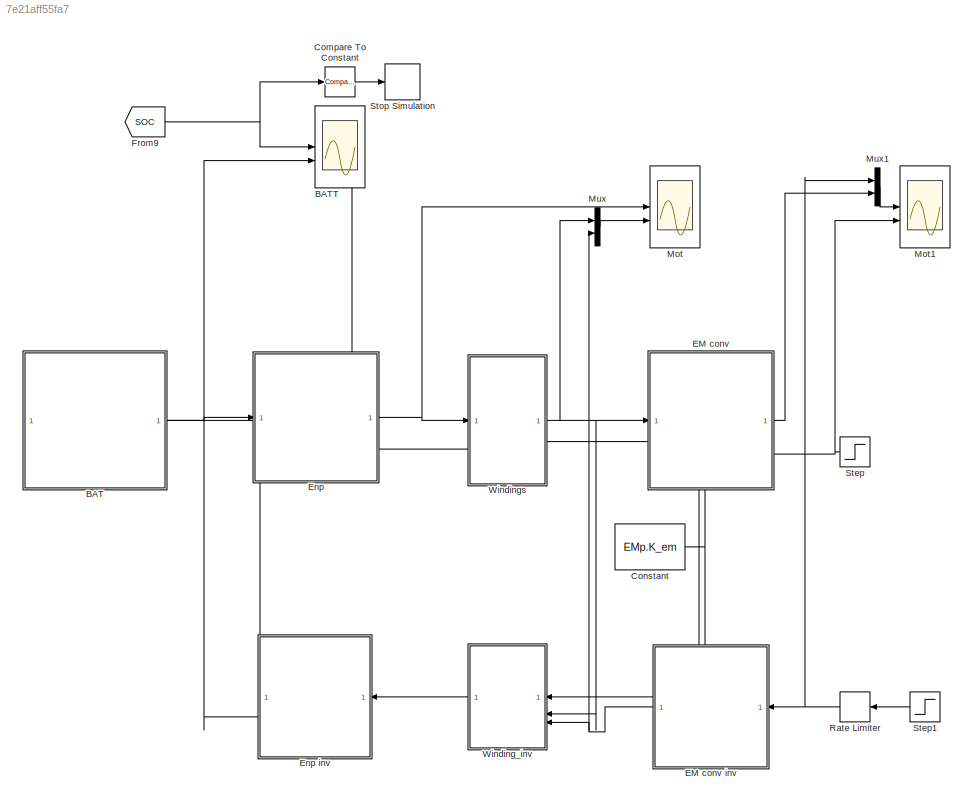
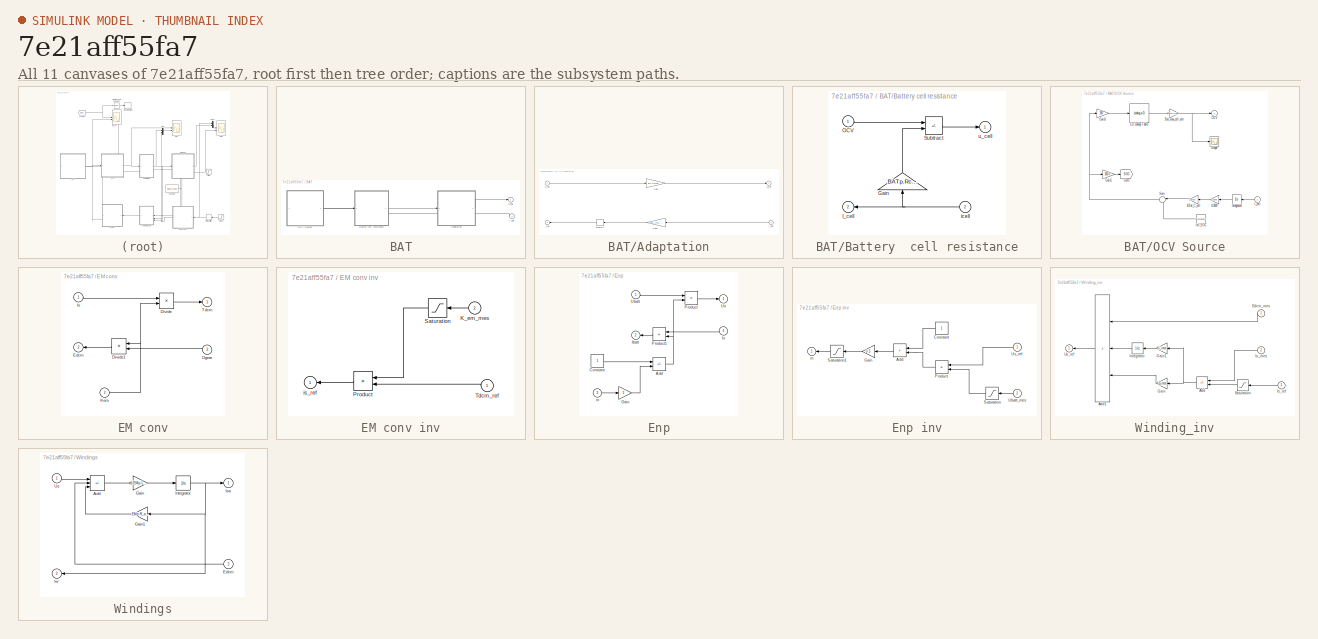
[diagram: thumbnail index - all 11 canvases of the model, root first then tree order]
MODEL slx_7e21aff55fa7
KIND model
CONFIG AbsTol = auto
CONFIG EnableMultiTasking = on
CONFIG FixedStep = 1e-2
CONFIG InitFcn = init_ev
CONFIG MaxStep = 1e-3
CONFIG MinStep = auto
CONFIG RelTol = 1e-3
CONFIG SampleTimeConstraint = Unconstrained
CONFIG SolverName = ode45
CONFIG StartTime = SIM.t_min
CONFIG StopTime = SIM.t_simul
BLOCK [SubSystem] BAT
  PortSchema = {"entries":[{"content":{"sides":[{"content":{"connectorIds":[]},"type":"ConnectorPlacement.EquallySpacedRectSide","uuid":"f966fbbf-87fd-4eae-ac75-d366ea856ba9"},{"content":{"connectorIds":["Out1","In1"],"side":"RIGHT"},"type":"ConnectorPlacement.EquallySpacedRectSide","uuid":"019a522f-a65b-4de4-928a-6ec503aa07e1"},{"content":{"connectorIds":[],"side":"TOP"},"type":"ConnectorPlacement.EquallySpaced...<+241ch>
BLOCK [SubSystem] BAT/Adaptation
  PortSchema = {"entries":[{"content":{"sides":[{"content":{"connectorIds":["In1","Out2"]},"type":"ConnectorPlacement.EquallySpacedRectSide","uuid":"43b53794-c784-4d35-8a91-f1490638489e"},{"content":{"connectorIds":["Out1","In2"],"side":"RIGHT"},"type":"ConnectorPlacement.EquallySpacedRectSide","uuid":"00b1a1a6-7269-4083-abb9-f1208d9f3b4c"},{"content":{"connectorIds":[],"side":"TOP"},"type":"ConnectorPlacement.E...<+253ch>
BLOCK [Gain] BAT/Adaptation/Gain
  Gain = BATp.ns
BLOCK [Gain] BAT/Adaptation/Gain1
  Gain = 1/BATp.np
  NameLocation = top
BLOCK [Inport] BAT/Adaptation/I_bat
  NameLocation = top
  Port = 2
BLOCK [Memory] BAT/Adaptation/Memory
BLOCK [Outport] BAT/Adaptation/i_cell
  InitialOutput = 0
  NameLocation = top
  Port = 2
BLOCK [Outport] BAT/Adaptation/u_bat
  InitialOutput = 0
BLOCK [Inport] BAT/Adaptation/u_cell
BLOCK [SubSystem] BAT/Battery  cell resistance
  PortSchema = {"entries":[{"content":{"sides":[{"content":{"connectorIds":["In1","Out2"]},"type":"ConnectorPlacement.EquallySpacedRectSide","uuid":"43b53794-c784-4d35-8a91-f1490638489e"},{"content":{"connectorIds":["Out1","In2"],"side":"RIGHT"},"type":"ConnectorPlacement.EquallySpacedRectSide","uuid":"00b1a1a6-7269-4083-abb9-f1208d9f3b4c"},{"content":{"connectorIds":[],"side":"TOP"},"type":"ConnectorPlacement.E...<+253ch>
BLOCK [Gain] BAT/Battery  cell resistance/Gain
  Gain = BATp.Rcell
  NameLocation = right
BLOCK [Outport] BAT/Battery  cell resistance/I_cell
  InitialOutput = 0
  NameLocation = top
  Port = 2
BLOCK [Inport] BAT/Battery  cell resistance/OCV
BLOCK [Sum] BAT/Battery  cell resistance/Subtract
  IconShape = rectangular
  Inputs = +-
BLOCK [Inport] BAT/Battery  cell resistance/icell
  NameLocation = top
  Port = 2
BLOCK [Outport] BAT/Battery  cell resistance/u_cell
  InitialOutput = 0
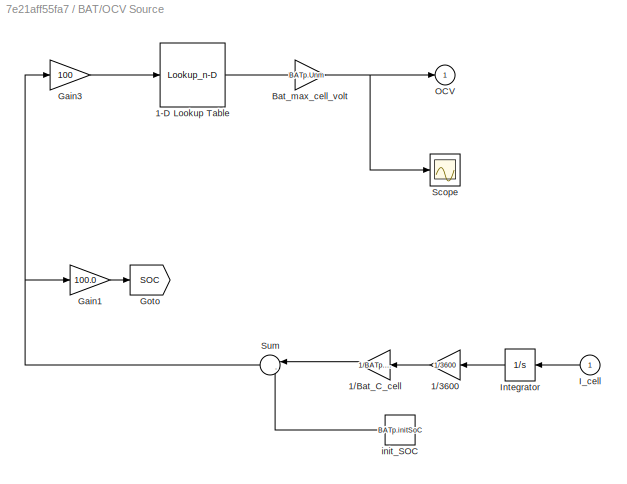
BLOCK [SubSystem] BAT/OCV Source
  PortSchema = {"entries":[{"content":{"sides":[{"content":{"connectorIds":[]},"type":"ConnectorPlacement.EquallySpacedRectSide","uuid":"87b7c904-bcc3-4a98-87e1-6b58a76e8897"},{"content":{"connectorIds":["Out1","In1"],"side":"RIGHT"},"type":"ConnectorPlacement.EquallySpacedRectSide","uuid":"67c0e4e9-ec6a-4f26-b099-e0fb0eaa0b35"},{"content":{"connectorIds":[],"side":"TOP"},"type":"ConnectorPlacement.EquallySpaced...<+241ch>
BLOCK [Lookup_n-D] BAT/OCV Source/1-D Lookup Table
  BreakpointsForDimension1 = BATp.SoC
  InputPortMap = u0
  InternalRulePriority = Speed
  NumberOfTableDimensions = 1
  RndMeth = Simplest
  Table = BATp.OCV
BLOCK [Gain] BAT/OCV Source/1//3600
  Gain = 1/3600
  NameLocation = top
BLOCK [Gain] BAT/OCV Source/1//Bat_C_cell
  Gain = 1/BATp.Ccell
  NameLocation = top
BLOCK [Gain] BAT/OCV Source/Bat_max_cell_volt
  Gain = BATp.Unm
  NameLocation = top
BLOCK [Gain] BAT/OCV Source/Gain1
  Gain = 100.0
BLOCK [Gain] BAT/OCV Source/Gain3
  Gain = 100
BLOCK [Goto] BAT/OCV Source/Goto
  GotoTag = SOC
  TagVisibility = global
BLOCK [Inport] BAT/OCV Source/I_cell 
  NameLocation = top
BLOCK [Integrator] BAT/OCV Source/Integrator
  NameLocation = top
BLOCK [Outport] BAT/OCV Source/OCV
  InitialOutput = 0
BLOCK [Scope] BAT/OCV Source/Scope
  Floating = off
  NumInputPorts = 1
  ScopeSpecificationString = Simulink.scopes.TimeScopeBlockCfg('CurrentConfiguration', extmgr.ConfigurationSet(extmgr.Configuration('Core','General UI',true),extmgr.Configuration('Core','Source UI',true),extmgr.Configuration('Sources','WiredSimulink',true,'DataLoggingVariableName','ScopeData1'),extmgr.Configuration('Visuals','Time Domain',true,'SerializedDisplays',{struct('MinYLimReal','2.54261','MaxYLimReal','4.35082','YLabe...<+1488ch>
BLOCK [Sum] BAT/OCV Source/Sum
  Inputs = |-+
  NameLocation = top
BLOCK [Constant] BAT/OCV Source/init_SOC
  NameLocation = top
  Value = BATp.initSoC
BLOCK [Inport] BAT/i_bat
  NameLocation = top
BLOCK [Outport] BAT/u_bat
  InitialOutput = 0
  NameLocation = top
BLOCK [Scope] BATT
  Floating = off
  NumInputPorts = 3
  ScopeSpecificationString = Simulink.scopes.TimeScopeBlockCfg('CurrentConfiguration', extmgr.ConfigurationSet(extmgr.Configuration('Core','General UI',true),extmgr.Configuration('Core','Source UI',true),extmgr.Configuration('Sources','WiredSimulink',true,'DataLoggingVariableName','ScopeData1','DataLoggingSaveFormat','StructureWithTime','DataLoggingDecimation','1','DataLoggingDecimateData',true),extmgr.Configuration('Visuals'...<+5620ch>
BLOCK [Reference] Compare To Constant  REF=simulink/Logic and Bit
Operations/Compare
To Constant
  SourceBlock = simulink/Logic and Bit\nOperations/Compare\nTo Constant
  SourceType = Compare To Constant
BLOCK [Constant] Constant
  Value = EMp.K_em
BLOCK [SubSystem] EM conv
  NameLocation = top
  PortSchema = {"entries":[{"content":{"sides":[{"content":{"connectorIds":["In1","Out2"]},"type":"ConnectorPlacement.EquallySpacedRectSide","uuid":"61fbc010-38ff-4a80-98f4-f5d8a9e77fd8"},{"content":{"connectorIds":["Out1","In3"],"side":"RIGHT"},"type":"ConnectorPlacement.EquallySpacedRectSide","uuid":"7ae9e15d-ee0f-4ba6-b3b7-5dcbca441e0a"},{"content":{"connectorIds":[],"side":"TOP"},"type":"ConnectorPlacement.E...<+402ch>
BLOCK [SubSystem] EM conv inv
  PortSchema = {"entries":[{"content":{"sides":[{"content":{"connectorIds":["In1"]},"type":"ConnectorPlacement.EquallySpacedRectSide","uuid":"4d7f5df0-62dd-439c-ab7a-6b52334803c9"},{"content":{"connectorIds":["Out1"],"side":"RIGHT"},"type":"ConnectorPlacement.EquallySpacedRectSide","uuid":"e27848f4-b1e1-4693-91ac-f60d5fe9d3fd"},{"content":{"connectorIds":["In2"],"side":"TOP"},"type":"ConnectorPlacement.EquallySp...<+245ch>
BLOCK [Inport] EM conv inv/K_em_mes
  NameLocation = top
  Port = 2
BLOCK [Product] EM conv inv/Product
  Inputs = /*
  NameLocation = top
BLOCK [Saturate] EM conv inv/Saturation
  LowerLimit = 0.1
  NameLocation = top
  UpperLimit = Inf
BLOCK [Inport] EM conv inv/Tdcm_ref
  NameLocation = top
BLOCK [Outport] EM conv inv/is_ref
  InitialOutput = 0
BLOCK [Product] EM conv/Divide
  Inputs = **
BLOCK [Product] EM conv/Divide1
  Inputs = **
  NameLocation = top
BLOCK [Outport] EM conv/Edcm
  InitialOutput = 0
  Port = 2
BLOCK [Inport] EM conv/Is
BLOCK [Inport] EM conv/Kem
  Port = 2
BLOCK [Inport] EM conv/Ogear
  Port = 3
BLOCK [Outport] EM conv/Tdcm
  InitialOutput = 0
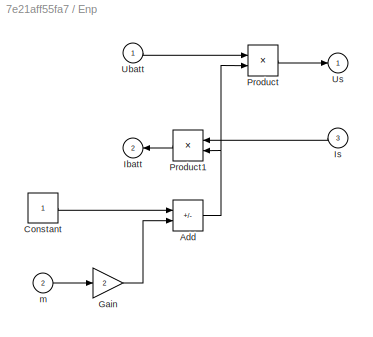
BLOCK [SubSystem] Enp
  NameLocation = top
  PortSchema = {"entries":[{"content":{"sides":[{"content":{"connectorIds":["In1","Out2"]},"type":"ConnectorPlacement.EquallySpacedRectSide","uuid":"62d3361f-f49a-4a89-b7fa-c77fcee42868"},{"content":{"connectorIds":["Out1","In3"],"side":"RIGHT"},"type":"ConnectorPlacement.EquallySpacedRectSide","uuid":"da99363c-611b-4582-b369-34120805217f"},{"content":{"side":"TOP"},"type":"ConnectorPlacement.EquallySpacedRectSi...<+384ch>
BLOCK [SubSystem] Enp inv
  PortSchema = {"entries":[{"content":{"sides":[{"content":{"connectorIds":["In1"]},"type":"ConnectorPlacement.EquallySpacedRectSide","uuid":"4d7f5df0-62dd-439c-ab7a-6b52334803c9"},{"content":{"connectorIds":["In2"],"side":"RIGHT"},"type":"ConnectorPlacement.EquallySpacedRectSide","uuid":"e27848f4-b1e1-4693-91ac-f60d5fe9d3fd"},{"content":{"connectorIds":["Out1"],"side":"TOP"},"type":"ConnectorPlacement.EquallySp...<+245ch>
BLOCK [Sum] Enp inv/Add
  IconShape = rectangular
  NameLocation = top
BLOCK [Constant] Enp inv/Constant
  NameLocation = top
BLOCK [Gain] Enp inv/Gain
  Gain = 0.5
  NameLocation = top
BLOCK [Product] Enp inv/Product
  Inputs = */
  NameLocation = top
BLOCK [Saturate] Enp inv/Saturation
  LowerLimit = 10
  NameLocation = top
  UpperLimit = Inf
BLOCK [Saturate] Enp inv/Saturation1
  LowerLimit = 0
  NameLocation = top
  UpperLimit = 1
BLOCK [Inport] Enp inv/Ubatt_mes
  NameLocation = top
  Port = 2
BLOCK [Inport] Enp inv/Us_ref
  NameLocation = top
BLOCK [Outport] Enp inv/m
  InitialOutput = 0
BLOCK [Sum] Enp/Add
  IconShape = rectangular
  Inputs = -+
BLOCK [Constant] Enp/Constant
BLOCK [Gain] Enp/Gain
  Gain = 2
BLOCK [Outport] Enp/Ibatt
  InitialOutput = 0
  NameLocation = top
  Port = 2
BLOCK [Inport] Enp/Is
  Port = 3
BLOCK [Product] Enp/Product
BLOCK [Product] Enp/Product1
  NameLocation = top
BLOCK [Inport] Enp/Ubatt
BLOCK [Outport] Enp/Us
  InitialOutput = 0
  NameLocation = top
BLOCK [Inport] Enp/m
  Port = 2
BLOCK [From] From9
  GotoTag = SOC
  TagVisibility = global
BLOCK [Scope] Mot
  Floating = off
  NumInputPorts = 2
  ScopeSpecificationString = Simulink.scopes.TimeScopeBlockCfg('CurrentConfiguration', extmgr.ConfigurationSet(extmgr.Configuration('Core','General UI',true),extmgr.Configuration('Core','Source UI',true),extmgr.Configuration('Sources','WiredSimulink',true,'DataLoggingVariableName','ScopeData1','DataLoggingSaveFormat','StructureWithTime','DataLoggingDecimation','1','DataLoggingDecimateData',true),extmgr.Configuration('Visuals'...<+4028ch>
BLOCK [Scope] Mot1
  Floating = off
  NumInputPorts = 2
  ScopeSpecificationString = Simulink.scopes.TimeScopeBlockCfg('CurrentConfiguration', extmgr.ConfigurationSet(extmgr.Configuration('Core','General UI',true),extmgr.Configuration('Core','Source UI',true),extmgr.Configuration('Sources','WiredSimulink',true,'DataLoggingVariableName','ScopeData1','DataLoggingSaveFormat','StructureWithTime','DataLoggingDecimation','1','DataLoggingDecimateData',true),extmgr.Configuration('Visuals'...<+4021ch>
BLOCK [Mux] Mux
  DisplayOption = bar
  Inputs = 2
BLOCK [Mux] Mux1
  DisplayOption = bar
  Inputs = 2
BLOCK [RateLimiter] Rate Limiter
  FallingSlewLimit = -EMp.T_max/0.5
  NameLocation = top
  RisingSlewLimit = EMp.T_max/0.5
  SampleTimeMode = inherited
BLOCK [Step] Step
  After = 400*2*pi/60
  Before = 500*2*pi/60
  NameLocation = top
  SampleTime = 0
  Time = 75
BLOCK [Step] Step1
  After = -50
  Before = 50
  NameLocation = top
  SampleTime = 0
  Time = 175
BLOCK [Stop] Stop Simulation
BLOCK [SubSystem] Winding_inv
  AncestorBlock = simulink/SMC/Asservissement\nCorrecteur IP
BLOCK [Sum] Winding_inv/Add
  IconShape = rectangular
  Inputs = -+
  NameLocation = top
BLOCK [Sum] Winding_inv/Add1
  IconShape = rectangular
  Inputs = +++
  NameLocation = top
BLOCK [Inport] Winding_inv/Edcm_mes
  NameLocation = top
BLOCK [Gain] Winding_inv/Gain
  Gain = Kp_imot
  NameLocation = top
BLOCK [Gain] Winding_inv/Gain1
  Gain = Ki_imot
  NameLocation = top
BLOCK [Integrator] Winding_inv/Integrator
  NameLocation = top
BLOCK [Inport] Winding_inv/Is_mes
  NameLocation = top
  Port = 2
BLOCK [Inport] Winding_inv/Is_ref
  Port = 3
BLOCK [Saturate] Winding_inv/Saturation
  LowerLimit = -EMp.I_arm_max
  NameLocation = top
  UpperLimit = EMp.I_arm_max
BLOCK [Outport] Winding_inv/Us_ref
  InitialOutput = 0
BLOCK [SubSystem] Windings
  NameLocation = top
  PortSchema = {"entries":[{"content":{"sides":[{"content":{"connectorIds":["In1","Out2"]},"type":"ConnectorPlacement.EquallySpacedRectSide","uuid":"620ffb90-6f06-474c-af56-4865758ad724"},{"content":{"connectorIds":["Out1","In2"],"side":"RIGHT"},"type":"ConnectorPlacement.EquallySpacedRectSide","uuid":"7a4bba18-9bee-4c5d-b60c-6ae6fbfa3157"},{"content":{"connectorIds":[],"side":"TOP"},"type":"ConnectorPlacement.E...<+253ch>
BLOCK [Sum] Windings/Add
  IconShape = rectangular
  Inputs = +--
BLOCK [Inport] Windings/Edcm
  Port = 2
BLOCK [Gain] Windings/Gain
  Gain = 1/EMp.L_arm
BLOCK [Gain] Windings/Gain1
  Gain = EMp.R_arm
  NameLocation = top
BLOCK [Integrator] Windings/Integrator
BLOCK [Outport] Windings/Isa
  InitialOutput = 0
BLOCK [Outport] Windings/Isr
  InitialOutput = 0
  Port = 2
BLOCK [Inport] Windings/Us
LINE BAT/Adaptation/Gain1:1 -> BAT/Adaptation/Memory:1
LINE BAT/Adaptation/Gain:1 -> BAT/Adaptation/u_bat:1
LINE BAT/Adaptation/I_bat:1 -> BAT/Adaptation/Gain1:1
LINE BAT/Adaptation/Memory:1 -> BAT/Adaptation/i_cell:1
LINE BAT/Adaptation/u_cell:1 -> BAT/Adaptation/Gain:1
LINE BAT/Adaptation:1 -> BAT/u_bat:1
LINE BAT/Adaptation:2 -> BAT/Battery  cell resistance:2
LINE BAT/Battery  cell resistance/Gain:1 -> BAT/Battery  cell resistance/Subtract:2
LINE BAT/Battery  cell resistance/OCV:1 -> BAT/Battery  cell resistance/Subtract:1
LINE BAT/Battery  cell resistance/Subtract:1 -> BAT/Battery  cell resistance/u_cell:1
NET BAT/Battery  cell resistance/icell:1 -> BAT/Battery  cell resistance/Gain:1, BAT/Battery  cell resistance/I_cell:1
LINE BAT/Battery  cell resistance:1 -> BAT/Adaptation:1
LINE BAT/Battery  cell resistance:2 -> BAT/OCV Source:1
LINE BAT/OCV Source/1-D Lookup Table:1 -> BAT/OCV Source/Bat_max_cell_volt:1
LINE BAT/OCV Source/1//3600:1 -> BAT/OCV Source/1//Bat_C_cell:1
LINE BAT/OCV Source/1//Bat_C_cell:1 -> BAT/OCV Source/Sum:1
NET BAT/OCV Source/Bat_max_cell_volt:1 -> BAT/OCV Source/OCV:1, BAT/OCV Source/Scope:1
LINE BAT/OCV Source/Gain1:1 -> BAT/OCV Source/Goto:1
LINE BAT/OCV Source/Gain3:1 -> BAT/OCV Source/1-D Lookup Table:1
LINE BAT/OCV Source/I_cell :1 -> BAT/OCV Source/Integrator:1
LINE BAT/OCV Source/Integrator:1 -> BAT/OCV Source/1//3600:1
NET BAT/OCV Source/Sum:1 -> BAT/OCV Source/Gain1:1, BAT/OCV Source/Gain3:1
LINE BAT/OCV Source/init_SOC:1 -> BAT/OCV Source/Sum:2
LINE BAT/OCV Source:1 -> BAT/Battery  cell resistance:1
LINE BAT/i_bat:1 -> BAT/Adaptation:2
NET BAT:1 -> BATT:2, Enp inv:2, Enp:1
LINE Compare To Constant:1 -> Stop Simulation:1
NET Constant:1 -> EM conv inv:2, EM conv:2
LINE EM conv inv/K_em_mes:1 -> EM conv inv/Saturation:1
LINE EM conv inv/Product:1 -> EM conv inv/is_ref:1
LINE EM conv inv/Saturation:1 -> EM conv inv/Product:1
LINE EM conv inv/Tdcm_ref:1 -> EM conv inv/Product:2
NET EM conv inv:1 -> Mux:2, Winding_inv:3
LINE EM conv/Divide1:1 -> EM conv/Edcm:1
LINE EM conv/Divide:1 -> EM conv/Tdcm:1
LINE EM conv/Is:1 -> EM conv/Divide:1
NET EM conv/Kem:1 -> EM conv/Divide1:1, EM conv/Divide:2
LINE EM conv/Ogear:1 -> EM conv/Divide1:2
LINE EM conv:1 -> Mux1:2
NET EM conv:2 -> Winding_inv:1, Windings:2
LINE Enp inv/Add:1 -> Enp inv/Gain:1
LINE Enp inv/Constant:1 -> Enp inv/Add:1
LINE Enp inv/Gain:1 -> Enp inv/Saturation1:1
LINE Enp inv/Product:1 -> Enp inv/Add:2
LINE Enp inv/Saturation1:1 -> Enp inv/m:1
LINE Enp inv/Saturation:1 -> Enp inv/Product:2
LINE Enp inv/Ubatt_mes:1 -> Enp inv/Saturation:1
LINE Enp inv/Us_ref:1 -> Enp inv/Product:1
LINE Enp inv:1 -> Enp:2
NET Enp/Add:1 -> Enp/Product1:2, Enp/Product:2
LINE Enp/Constant:1 -> Enp/Add:1
LINE Enp/Gain:1 -> Enp/Add:2
LINE Enp/Is:1 -> Enp/Product1:1
LINE Enp/Product1:1 -> Enp/Ibatt:1
LINE Enp/Product:1 -> Enp/Us:1
LINE Enp/Ubatt:1 -> Enp/Product:1
LINE Enp/m:1 -> Enp/Gain:1
NET Enp:1 -> Mot:1, Windings:1
NET Enp:2 -> BAT:1, BATT:3
NET From9:1 -> BATT:1, Compare To Constant:1
LINE Mux1:1 -> Mot1:1
LINE Mux:1 -> Mot:2
NET Rate Limiter:1 -> EM conv inv:1, Mux1:1
LINE Step1:1 -> Rate Limiter:1
NET Step:1 -> EM conv:3, Mot1:2
LINE Winding_inv:1 -> Enp inv:1
LINE Windings/Add:1 -> Windings/Gain:1
LINE Windings/Edcm:1 -> Windings/Add:2
LINE Windings/Gain1:1 -> Windings/Add:3
LINE Windings/Gain:1 -> Windings/Integrator:1
NET Windings/Integrator:1 -> Windings/Gain1:1, Windings/Isa:1, Windings/Isr:1
LINE Windings/Us:1 -> Windings/Add:1
NET Windings:1 -> EM conv:1, Mux:1, Winding_inv:2
LINE Windings:2 -> Enp:3
note: NET lines group one-source signal fan-out (src -> all destinations, sorted); 1:1 wires keep LINE
